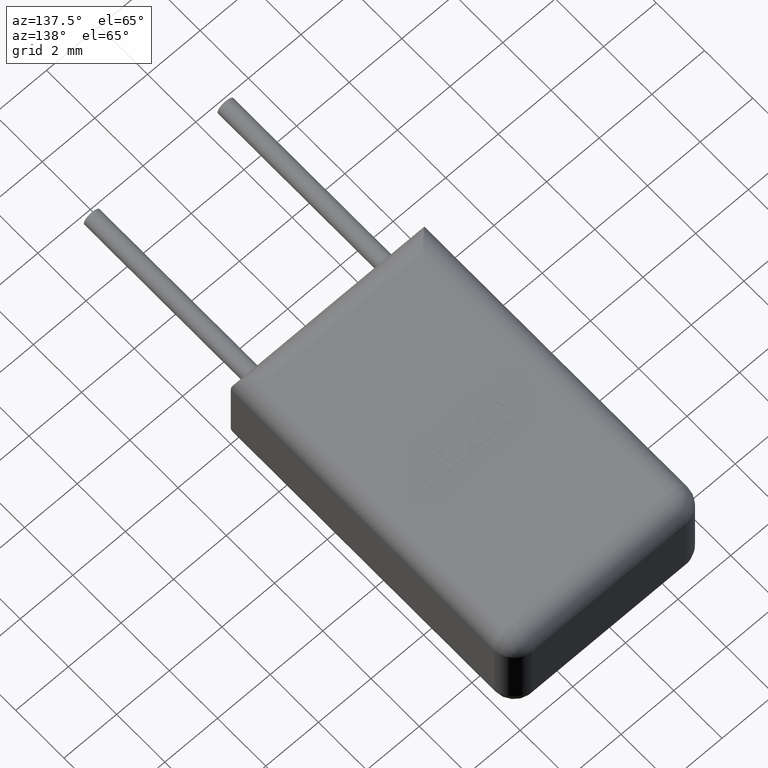
[diagram: clean part render]
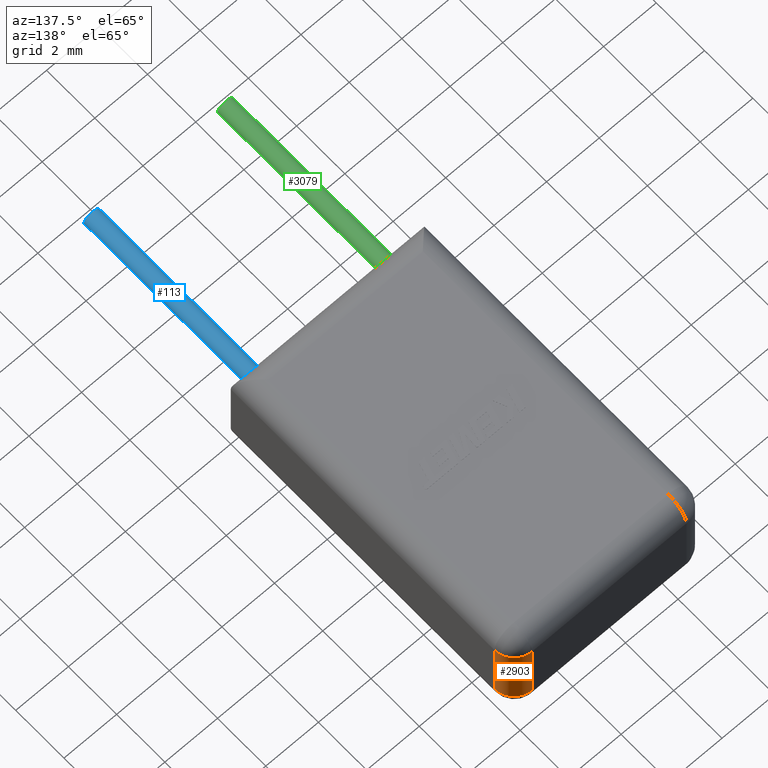
[diagram: same view with three faces highlighted in distinct colors, each labeled with its STEP entity id]
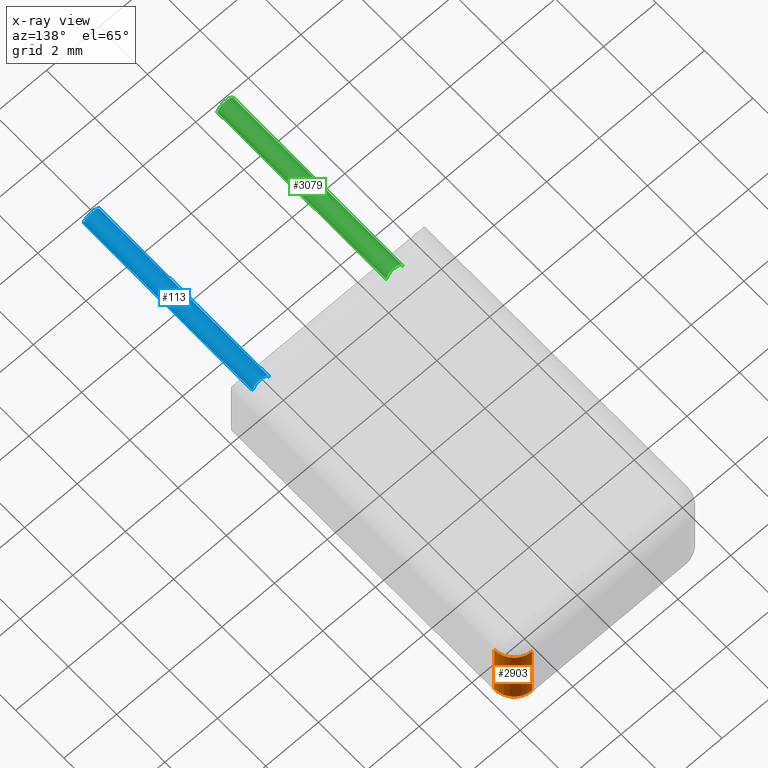
[diagram: x-ray of the same camera — body ghosted, the three highlighted faces saturated]
A machine part, auxiliary view with three faces highlighted in distinct colors.
The next image is the same camera in x-ray (body ghosted, the three faces saturated) — at least one of them is partly hidden behind the body in this view.
Their STEP definitions:

[orange] entity #2903 — the highlighted cylindrical surface (edge-blend (fillet) strip) has radius 0.75 mm, axis along (0, 0, -1).
#95 = DIRECTION ( 'NONE',  ( -0.0000000000000000000, -0.0000000000000000000, 1.000000000000000000 ) ) ;
#273 = ORIENTED_EDGE ( 'NONE', *, *, #3183, .F. ) ;
#288 = EDGE_CURVE ( 'NONE', #3132, #3196, #3072, .T. ) ;
#442 = FACE_OUTER_BOUND ( 'NONE', #1707, .T. ) ;
#546 = DIRECTION ( 'NONE',  ( -1.000000000000000000, 0.0000000000000000000, 0.0000000000000000000 ) ) ;
#687 = CARTESIAN_POINT ( 'NONE',  ( 0.0000000000000000000, 10.92999999999999600, 3.320000000000000700 ) ) ;
#769 = CYLINDRICAL_SURFACE ( 'NONE', #1600, 0.7500000000000000000 ) ;
#866 = CIRCLE ( 'NONE', #2696, 0.7500000000000000000 ) ;
#984 = LINE ( 'NONE', #1507, #2609 ) ;
#1093 = DIRECTION ( 'NONE',  ( 0.0000000000000000000, 0.0000000000000000000, -1.000000000000000000 ) ) ;
#1094 = AXIS2_PLACEMENT_3D ( 'NONE', #3433, #1736, #2602 ) ;
#1302 = ORIENTED_EDGE ( 'NONE', *, *, #3135, .F. ) ;
#1393 = ORIENTED_EDGE ( 'NONE', *, *, #288, .F. ) ;
#1483 = VECTOR ( 'NONE', #2668, 1000.000000000000000 ) ;
#1507 = CARTESIAN_POINT ( 'NONE',  ( 0.0000000000000000000, 10.92999999999999600, 4.070000000000000300 ) ) ;
#1600 = AXIS2_PLACEMENT_3D ( 'NONE', #3378, #1093, #546 ) ;
#1707 = EDGE_LOOP ( 'NONE', ( #1947, #1302, #1393, #273 ) ) ;
#1736 = DIRECTION ( 'NONE',  ( 0.0000000000000000000, 0.0000000000000000000, 1.000000000000000000 ) ) ;
#1857 = CARTESIAN_POINT ( 'NONE',  ( -0.7499999999999997800, 10.92999999999999600, 0.7499999999999997800 ) ) ;
#1947 = ORIENTED_EDGE ( 'NONE', *, *, #2086, .T. ) ;
#2086 = EDGE_CURVE ( 'NONE', #2198, #3305, #866, .T. ) ;
#2136 = DIRECTION ( 'NONE',  ( -1.000000000000000000, 0.0000000000000000000, 0.0000000000000000000 ) ) ;
#2198 = VERTEX_POINT ( 'NONE', #3304 ) ;
#2253 = LINE ( 'NONE', #2381, #1483 ) ;
#2381 = CARTESIAN_POINT ( 'NONE',  ( -0.7499999999999997800, 11.67999999999999800, 4.070000000000000300 ) ) ;
#2420 = DIRECTION ( 'NONE',  ( -0.0000000000000000000, -0.0000000000000000000, 1.000000000000000000 ) ) ;
#2465 = CARTESIAN_POINT ( 'NONE',  ( -0.7499999999999997800, 11.67999999999999800, 0.7499999999999997800 ) ) ;
#2602 = DIRECTION ( 'NONE',  ( 1.000000000000000000, 0.0000000000000000000, 0.0000000000000000000 ) ) ;
#2609 = VECTOR ( 'NONE', #2420, 1000.000000000000000 ) ;
#2668 = DIRECTION ( 'NONE',  ( 0.0000000000000000000, 0.0000000000000000000, -1.000000000000000000 ) ) ;
#2696 = AXIS2_PLACEMENT_3D ( 'NONE', #1857, #95, #2136 ) ;
#2903 = ADVANCED_FACE ( 'NONE', ( #442 ), #769, .T. ) ;
#3072 = CIRCLE ( 'NONE', #1094, 0.7500000000000000000 ) ;
#3132 = VERTEX_POINT ( 'NONE', #687 ) ;
#3135 = EDGE_CURVE ( 'NONE', #3196, #3305, #2253, .T. ) ;
#3183 = EDGE_CURVE ( 'NONE', #2198, #3132, #984, .T. ) ;
#3196 = VERTEX_POINT ( 'NONE', #3481 ) ;
#3304 = CARTESIAN_POINT ( 'NONE',  ( 0.0000000000000000000, 10.92999999999999600, 0.7499999999999997800 ) ) ;
#3305 = VERTEX_POINT ( 'NONE', #2465 ) ;
#3378 = CARTESIAN_POINT ( 'NONE',  ( -0.7499999999999997800, 10.92999999999999600, 4.070000000000000300 ) ) ;
#3433 = CARTESIAN_POINT ( 'NONE',  ( -0.7500000000000000000, 10.92999999999999600, 3.320000000000000700 ) ) ;
#3481 = CARTESIAN_POINT ( 'NONE',  ( -0.7499999999999997800, 11.67999999999999800, 3.320000000000000700 ) ) ;

[blue] entity #113 — the highlighted cylindrical surface (edge-blend (fillet) strip) has radius 0.305 mm, axis along (0, 1, -0).
#90 = VERTEX_POINT ( 'NONE', #2444 ) ;
#113 = ADVANCED_FACE ( 'NONE', ( #1657 ), #1330, .T. ) ;
#355 = ORIENTED_EDGE ( 'NONE', *, *, #3226, .T. ) ;
#398 = DIRECTION ( 'NONE',  ( 1.224646799147353200E-016, 1.000000000000000000, -0.0000000000000000000 ) ) ;
#407 = DIRECTION ( 'NONE',  ( -1.000000000000000000, 0.0000000000000000000, 0.0000000000000000000 ) ) ;
#597 = CIRCLE ( 'NONE', #2777, 0.3050000000000001600 ) ;
#705 = CARTESIAN_POINT ( 'NONE',  ( -1.140000000000001200, -7.000000000000000900, 2.035000000000000100 ) ) ;
#723 = DIRECTION ( 'NONE',  ( 1.224646799147353200E-016, 1.000000000000000000, -0.0000000000000000000 ) ) ;
#845 = DIRECTION ( 'NONE',  ( 1.224646799147353200E-016, 1.000000000000000000, -0.0000000000000000000 ) ) ;
#858 = DIRECTION ( 'NONE',  ( -1.000000000000000000, 1.224646799147353900E-016, 0.0000000000000000000 ) ) ;
#994 = DIRECTION ( 'NONE',  ( 1.224646799147353200E-016, 1.000000000000000000, -0.0000000000000000000 ) ) ;
#1124 = EDGE_CURVE ( 'NONE', #2788, #3525, #3648, .T. ) ;
#1330 = CYLINDRICAL_SURFACE ( 'NONE', #3596, 0.3050000000000001600 ) ;
#1481 = LINE ( 'NONE', #2989, #3464 ) ;
#1567 = CARTESIAN_POINT ( 'NONE',  ( -0.8350000000000010700, -7.000000000000000900, 2.035000000000000100 ) ) ;
#1657 = FACE_OUTER_BOUND ( 'NONE', #2484, .T. ) ;
#1662 = ORIENTED_EDGE ( 'NONE', *, *, #2694, .F. ) ;
#1676 = ORIENTED_EDGE ( 'NONE', *, *, #1916, .F. ) ;
#1916 = EDGE_CURVE ( 'NONE', #90, #1953, #597, .T. ) ;
#1953 = VERTEX_POINT ( 'NONE', #2098 ) ;
#2098 = CARTESIAN_POINT ( 'NONE',  ( -0.8350000000000001900, -7.990820364436479900E-016, 2.035000000000000100 ) ) ;
#2108 = ORIENTED_EDGE ( 'NONE', *, *, #1124, .T. ) ;
#2194 = DIRECTION ( 'NONE',  ( 1.224646799147353200E-016, 1.000000000000000000, -0.0000000000000000000 ) ) ;
#2228 = CARTESIAN_POINT ( 'NONE',  ( -1.445000000000001400, -7.000000000000000900, 2.035000000000000100 ) ) ;
#2444 = CARTESIAN_POINT ( 'NONE',  ( -1.445000000000000500, -7.243785816956593800E-016, 2.035000000000000100 ) ) ;
#2484 = EDGE_LOOP ( 'NONE', ( #2108, #355, #1676, #1662 ) ) ;
#2582 = VECTOR ( 'NONE', #2194, 1000.000000000000000 ) ;
#2588 = CARTESIAN_POINT ( 'NONE',  ( -1.140000000000000300, -7.617303090696536400E-016, 2.035000000000000100 ) ) ;
#2694 = EDGE_CURVE ( 'NONE', #2788, #90, #3483, .T. ) ;
#2777 = AXIS2_PLACEMENT_3D ( 'NONE', #2588, #845, #858 ) ;
#2788 = VERTEX_POINT ( 'NONE', #3594 ) ;
#2989 = CARTESIAN_POINT ( 'NONE',  ( -0.8350000000000010700, -7.000000000000000900, 2.035000000000000100 ) ) ;
#2990 = AXIS2_PLACEMENT_3D ( 'NONE', #705, #994, #2992 ) ;
#2992 = DIRECTION ( 'NONE',  ( -1.000000000000000000, 0.0000000000000000000, 0.0000000000000000000 ) ) ;
#3226 = EDGE_CURVE ( 'NONE', #3525, #1953, #1481, .T. ) ;
#3464 = VECTOR ( 'NONE', #398, 1000.000000000000000 ) ;
#3483 = LINE ( 'NONE', #2228, #2582 ) ;
#3522 = CARTESIAN_POINT ( 'NONE',  ( -1.140000000000001200, -7.000000000000000900, 2.035000000000000100 ) ) ;
#3525 = VERTEX_POINT ( 'NONE', #1567 ) ;
#3594 = CARTESIAN_POINT ( 'NONE',  ( -1.445000000000001400, -7.000000000000000900, 2.035000000000000100 ) ) ;
#3596 = AXIS2_PLACEMENT_3D ( 'NONE', #3522, #723, #407 ) ;
#3648 = CIRCLE ( 'NONE', #2990, 0.3050000000000001600 ) ;

[green] entity #3079 — the highlighted cylindrical surface (edge-blend (fillet) strip) has radius 0.305 mm, axis along (-0, 1, -0).
#25 = DIRECTION ( 'NONE',  ( 1.224646799147353200E-016, -1.000000000000000000, -0.0000000000000000000 ) ) ;
#134 = EDGE_CURVE ( 'NONE', #1887, #2411, #835, .T. ) ;
#299 = VERTEX_POINT ( 'NONE', #553 ) ;
#346 = CARTESIAN_POINT ( 'NONE',  ( -6.219999999999999800, -8.673617379884035500E-016, 2.035000000000000100 ) ) ;
#553 = CARTESIAN_POINT ( 'NONE',  ( -6.524999999999999500, -9.047134653623978000E-016, 2.035000000000000100 ) ) ;
#613 = DIRECTION ( 'NONE',  ( -1.000000000000000000, -1.224646799147355700E-016, 0.0000000000000000000 ) ) ;
#683 = VECTOR ( 'NONE', #3219, 1000.000000000000000 ) ;
#796 = AXIS2_PLACEMENT_3D ( 'NONE', #1954, #1114, #2583 ) ;
#835 = LINE ( 'NONE', #2453, #3553 ) ;
#1114 = DIRECTION ( 'NONE',  ( 1.224646799147353200E-016, -1.000000000000000000, 0.0000000000000000000 ) ) ;
#1139 = ORIENTED_EDGE ( 'NONE', *, *, #2666, .F. ) ;
#1240 = DIRECTION ( 'NONE',  ( -1.224646799147353200E-016, 1.000000000000000000, -0.0000000000000000000 ) ) ;
#1253 = VERTEX_POINT ( 'NONE', #2610 ) ;
#1278 = DIRECTION ( 'NONE',  ( -1.224646799147353200E-016, 1.000000000000000000, -0.0000000000000000000 ) ) ;
#1292 = AXIS2_PLACEMENT_3D ( 'NONE', #346, #25, #613 ) ;
#1306 = CARTESIAN_POINT ( 'NONE',  ( -6.524999999999999500, -7.000000000000000900, 2.035000000000000100 ) ) ;
#1472 = CARTESIAN_POINT ( 'NONE',  ( -6.219999999999998900, -7.000000000000000900, 2.035000000000000100 ) ) ;
#1496 = LINE ( 'NONE', #1306, #683 ) ;
#1618 = CARTESIAN_POINT ( 'NONE',  ( -5.914999999999998300, -7.000000000000000900, 2.035000000000000100 ) ) ;
#1640 = EDGE_CURVE ( 'NONE', #2411, #299, #1952, .T. ) ;
#1887 = VERTEX_POINT ( 'NONE', #1618 ) ;
#1952 = CIRCLE ( 'NONE', #1292, 0.3049999999999997200 ) ;
#1954 = CARTESIAN_POINT ( 'NONE',  ( -6.219999999999998900, -7.000000000000000900, 2.035000000000000100 ) ) ;
#2012 = ORIENTED_EDGE ( 'NONE', *, *, #134, .T. ) ;
#2102 = DIRECTION ( 'NONE',  ( -1.000000000000000000, 0.0000000000000000000, 0.0000000000000000000 ) ) ;
#2161 = CIRCLE ( 'NONE', #796, 0.3050000000000006000 ) ;
#2411 = VERTEX_POINT ( 'NONE', #3128 ) ;
#2453 = CARTESIAN_POINT ( 'NONE',  ( -5.914999999999998300, -7.000000000000000900, 2.035000000000000100 ) ) ;
#2583 = DIRECTION ( 'NONE',  ( 1.000000000000000000, 0.0000000000000000000, 0.0000000000000000000 ) ) ;
#2591 = ORIENTED_EDGE ( 'NONE', *, *, #1640, .T. ) ;
#2610 = CARTESIAN_POINT ( 'NONE',  ( -6.524999999999999500, -7.000000000000000900, 2.035000000000000100 ) ) ;
#2666 = EDGE_CURVE ( 'NONE', #1253, #299, #1496, .T. ) ;
#2796 = EDGE_CURVE ( 'NONE', #1887, #1253, #2161, .T. ) ;
#2826 = FACE_OUTER_BOUND ( 'NONE', #2996, .T. ) ;
#2996 = EDGE_LOOP ( 'NONE', ( #3577, #2012, #2591, #1139 ) ) ;
#3079 = ADVANCED_FACE ( 'NONE', ( #2826 ), #3170, .T. ) ;
#3128 = CARTESIAN_POINT ( 'NONE',  ( -5.915000000000000000, -8.300100106144092000E-016, 2.035000000000000100 ) ) ;
#3170 = CYLINDRICAL_SURFACE ( 'NONE', #3610, 0.3050000000000006000 ) ;
#3219 = DIRECTION ( 'NONE',  ( -1.224646799147353200E-016, 1.000000000000000000, -0.0000000000000000000 ) ) ;
#3553 = VECTOR ( 'NONE', #1278, 1000.000000000000000 ) ;
#3577 = ORIENTED_EDGE ( 'NONE', *, *, #2796, .F. ) ;
#3610 = AXIS2_PLACEMENT_3D ( 'NONE', #1472, #1240, #2102 ) ;